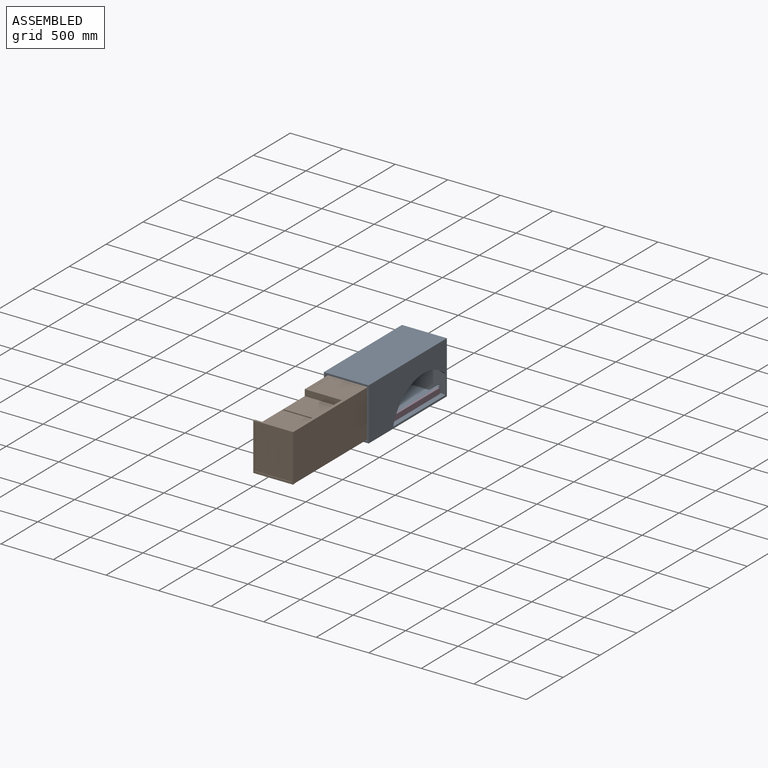
[diagram: assembled view]
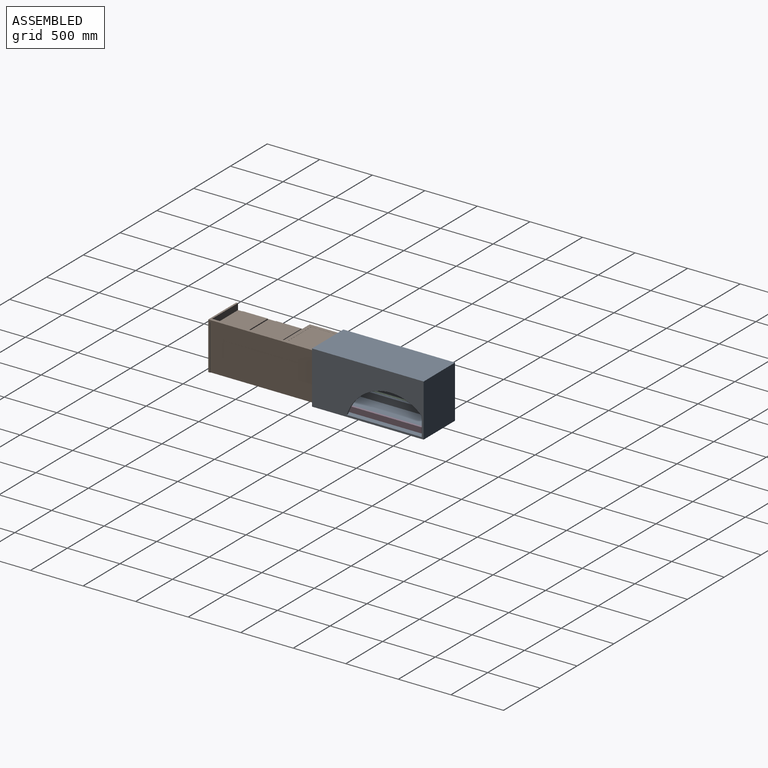
[diagram: assembled view, second angle]
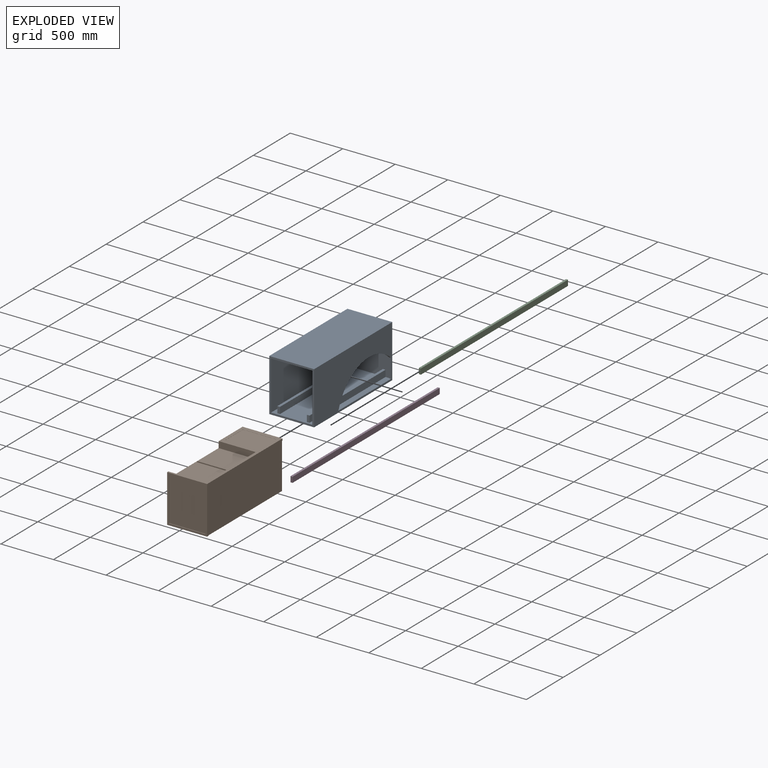
[diagram: exploded view]
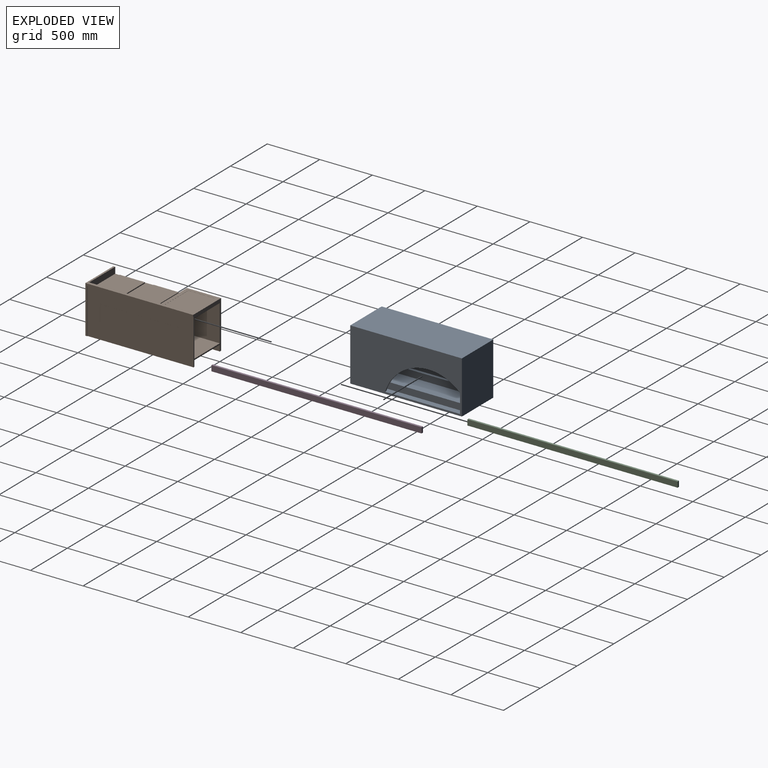
[diagram: exploded view, second angle]
ASSEMBLY  parts=4 mates=3
PART A: 21 faces, bbox 427x1062.5x500 mm
  f0: plane 1050x465mm, normal (-1,0,0), area 317641mm2, adj f2,f3,f8,f9,f19,f20
  f1: plane 1062.5x500mm, normal (1,0,0), area 360641mm2, adj f3,f4,f6,f8,f10,f19,f20
  f2: plane 1050x392mm, normal (0,0,-1), area 411600mm2, adj f0,f7,f8,f9
  f3: plane 1050x409.5mm, normal (0,0,1), area 372465.4mm2, adj f0,f1,f7,f8,f9,f11,f12,f14
  f4: plane 1062.5x427mm, normal (0,0,1), area 453687.5mm2, adj f1,f5,f8,f10
  f5: plane 1062.5x500mm, normal (-1,0,0), area 531250mm2, adj f4,f6,f8,f10
  f6: plane 1062.5x427mm, normal (0,0,-1), area 453687.5mm2, adj f1,f5,f8,f10
  f7: plane 1050x465mm, normal (1,0,0), area 488250mm2, adj f2,f3,f8,f9
  f8: plane 500x427mm, normal (0,-1,0), area 31220mm2, adj f0,f1,f2,f3,f4,f5,f6,f7
  f9: plane 465x392mm, normal (0,-1,0), area 179180mm2, adj f0,f2,f3,f7,f12,f13,f14,f16
  f10: plane 500x427mm, normal (0,1,0), area 213500mm2, adj f1,f4,f5,f6
  f11: plane 62x25mm, normal (0,-1,0), area 1550mm2, adj f3,f12,f13,f14
  f12: plane 1032.5x62mm, normal (-1,0,0), area 64015mm2, adj f3,f9,f11,f13
  f13: plane 1032.5x25mm, normal (0,0,1), area 25812.5mm2, adj f9,f11,f12,f14
  f14: plane 1032.5x62mm, normal (1,0,0), area 64015mm2, adj f3,f9,f11,f13
  f15: plane 62x25mm, normal (0,-1,0), area 1550mm2, adj f3,f16,f17,f18
  f16: plane 1032.5x62mm, normal (-1,0,0), area 64015mm2, adj f3,f9,f15,f17
  f17: plane 1032.5x25mm, normal (0,0,1), area 25812.5mm2, adj f9,f15,f16,f18
  f18: plane 1032.5x62mm, normal (1,0,0), area 64015mm2, adj f3,f9,f15,f17
  f19: plane 181.36x17.5mm, normal (0,-1,0), area 3173.7mm2, adj f0,f1,f3,f20
  f20: cylinder r=434.62mm len=713.74mm, axis (1,0,0), area 15374.1mm2, adj f0,f1,f3,f19
PART B: 69 faces, bbox 380x1025x452.5 mm
  f0: plane 1025x380mm, normal (0,0,1), area 69853.5mm2, adj f1,f7,f10,f19,f22,f50,f57,f64
  f1: plane 452.5x380mm, normal (0,1,0), area 30434.4mm2, adj f0,f2,f6,f9,f14,f15,f16,f17
  f2: plane 1007.5x435mm, normal (1,0,0), area 438262.5mm2, adj f1,f20,f21,f51
  f3: plane 682.5x292.5mm, normal (1,0,0), area 95131.2mm2, adj f4,f18,f43,f44,f45,f46,f47,f59
  f4: plane 682.5x345mm, normal (0,0,-1), area 107590.5mm2, adj f3,f5,f33,f34,f35,f36,f38,f39
  f5: plane 682.5x292.5mm, normal (-1,0,0), area 199631.2mm2, adj f4,f18,f47,f59
  f6: plane 345x312.5mm, normal (0,0,1), area 107812.5mm2, adj f1,f9,f17,f58
  f7: plane 452.5x380mm, normal (0,-1,0), area 27912.5mm2, adj f0,f19,f20,f22,f52,f53,f54,f55
  f8: plane 990x420mm, normal (-1,0,0), area 277350mm2, adj f12,f13,f43,f44,f45,f46,f49,f60
  f9: plane 346.39x312.5mm, normal (1,0,0), area 108245.6mm2, adj f1,f6,f58,f63
  f10: plane 682.5x60mm, normal (-1,0,0), area 40950mm2, adj f0,f11,f50,f57
  f11: plane 682.5x352.5mm, normal (0,0,1), area 86981.3mm2, adj f10,f19,f23,f24,f25,f26,f28,f29
  f12: plane 700x5mm, normal (0,0,-1), area 3500mm2, adj f8,f19,f49,f62
  f13: plane 990x5mm, normal (0,0,1), area 4950mm2, adj f8,f19,f49,f60
  f14: plane 1007.5x57.5mm, normal (1,0,0), area 57931.3mm2, adj f1,f15,f20,f48
  f15: plane 1007.5x345mm, normal (0,0,-1), area 347587.5mm2, adj f1,f14,f16,f48
  f16: plane 1007.5x57.5mm, normal (-1,0,0), area 57931.3mm2, adj f1,f15,f20,f48
  f17: plane 346.39x312.5mm, normal (-1,0,0), area 108245.6mm2, adj f1,f6,f58,f63
  f18: plane 682.5x345mm, normal (0,0,1), area 235462.5mm2, adj f3,f5,f47,f59
  f19: plane 1025x452.5mm, normal (-1,0,0), area 41012.5mm2, adj f0,f1,f7,f11,f12,f13,f20,f49
  f20: plane 1025x380mm, normal (0,0,-1), area 36875mm2, adj f1,f2,f7,f14,f16,f19,f22,f48
  f21: plane 1007.5x5mm, normal (0,0,-1), area 5037.5mm2, adj f1,f2,f22,f51
  f22: plane 1025x452.5mm, normal (1,0,0), area 25550mm2, adj f0,f1,f7,f20,f21,f51
  f23: plane 240x10mm, normal (1,0,0), area 2400mm2, adj f11,f24,f26,f27
  f24: plane 320x10mm, normal (0,1,0), area 3200mm2, adj f11,f23,f25,f27
  f25: plane 240x10mm, normal (-1,0,0), area 2400mm2, adj f11,f24,f26,f27
  f26: plane 320x10mm, normal (0,-1,0), area 3200mm2, adj f11,f23,f25,f27
  f27: plane 320x240mm, normal (0,0,1), area 76800mm2, adj f23,f24,f25,f26
  f28: plane 240x10mm, normal (1,0,0), area 2400mm2, adj f11,f29,f31,f32
  f29: plane 320x10mm, normal (0,1,0), area 3200mm2, adj f11,f28,f30,f32
  f30: plane 240x10mm, normal (-1,0,0), area 2400mm2, adj f11,f29,f31,f32
  f31: plane 320x10mm, normal (0,-1,0), area 3200mm2, adj f11,f28,f30,f32
  f32: plane 320x240mm, normal (0,0,1), area 76800mm2, adj f28,f29,f30,f31
  f33: plane 216x30mm, normal (-1,0,0), area 6480mm2, adj f4,f34,f36,f37
  f34: plane 296x30mm, normal (0,-1,0), area 8880mm2, adj f4,f33,f35,f37
  f35: plane 216x30mm, normal (1,0,0), area 6480mm2, adj f4,f34,f36,f37
  f36: plane 296x30mm, normal (0,1,0), area 8880mm2, adj f4,f33,f35,f37
  f37: plane 296x216mm, normal (0,0,-1), area 63936mm2, adj f33,f34,f35,f36
  f38: plane 216x30mm, normal (-1,0,0), area 6480mm2, adj f4,f39,f41,f42
  f39: plane 296x30mm, normal (0,-1,0), area 8880mm2, adj f4,f38,f40,f42
  f40: plane 216x30mm, normal (1,0,0), area 6480mm2, adj f4,f39,f41,f42
  f41: plane 296x30mm, normal (0,1,0), area 8880mm2, adj f4,f38,f40,f42
  f42: plane 296x216mm, normal (0,0,-1), area 63936mm2, adj f38,f39,f40,f41
  f43: plane 190x12.5mm, normal (0,1,0), area 2375mm2, adj f3,f8,f44,f46
  f44: plane 550x12.5mm, normal (0,0,-1), area 6875mm2, adj f3,f8,f43,f45
  f45: plane 190x12.5mm, normal (0,-1,0), area 2375mm2, adj f3,f8,f44,f46
  f46: plane 550x12.5mm, normal (0,0,1), area 6875mm2, adj f3,f8,f43,f45
  f47: plane 345x292.5mm, normal (0,1,0), area 100912.5mm2, adj f3,f4,f5,f18
  f48: plane 345x57.5mm, normal (0,1,0), area 19837.5mm2, adj f14,f15,f16,f20
  f49: plane 371.5x5mm, normal (0,1,0), area 1857.5mm2, adj f8,f12,f13,f19
  f50: plane 352.5x60mm, normal (0,1,0), area 21150mm2, adj f0,f10,f11,f19
  f51: plane 435x5mm, normal (0,1,0), area 2175mm2, adj f2,f20,f21,f22
  f52: plane 345x5mm, normal (0,0,-1), area 1725mm2, adj f7,f53,f55,f56
  f53: plane 417.5x5mm, normal (1,0,0), area 2087.5mm2, adj f7,f52,f54,f56
  f54: plane 345x5mm, normal (0,0,1), area 1725mm2, adj f7,f53,f55,f56
  f55: plane 417.5x5mm, normal (-1,0,0), area 2087.5mm2, adj f7,f52,f54,f56
  f56: plane 417.5x345mm, normal (0,-1,0), area 144037.5mm2, adj f52,f53,f54,f55
  f57: plane 352.5x60mm, normal (0,-1,0), area 21150mm2, adj f0,f10,f11,f19
  f58: plane 346.39x345mm, normal (0,1,0), area 119503.1mm2, adj f6,f9,f17,f63
  f59: plane 345x292.5mm, normal (0,-1,0), area 100912.5mm2, adj f3,f4,f5,f18
  f60: plane 420x5mm, normal (0,-1,0), area 2100mm2, adj f8,f13,f19,f61
  f61: plane 290x5mm, normal (0,0,-1), area 1450mm2, adj f8,f19,f60,f62
  f62: plane 48.5x5mm, normal (0,1,0), area 242.5mm2, adj f8,f12,f19,f61
  f63: plane 345x312.5mm, normal (0,0,-1), area 107812.5mm2, adj f1,f9,f17,f58
  f64: plane 250x1mm, normal (1,0,0), area 250mm2, adj f0,f65,f67,f68
  f65: plane 316.26x1mm, normal (0,1,0), area 316.3mm2, adj f0,f64,f66,f68
  f66: plane 250x1mm, normal (-1,0,0), area 250mm2, adj f0,f65,f67,f68
  f67: plane 316.26x1mm, normal (0,-1,0), area 316.3mm2, adj f0,f64,f66,f68
  f68: plane 316.26x250mm, normal (0,0,1), area 79065.2mm2, adj f64,f65,f66,f67
PART C: 6 faces, bbox 19.5x2000x53 mm
  f0: plane 2000x19.5mm, normal (0,0,1), area 39000mm2, adj f1,f3,f4,f5
  f1: plane 2000x53mm, normal (-1,0,0), area 106000mm2, adj f0,f2,f4,f5
  f2: plane 2000x19.5mm, normal (0,0,-1), area 39000mm2, adj f1,f3,f4,f5
  f3: plane 2000x53mm, normal (1,0,0), area 106000mm2, adj f0,f2,f4,f5
  f4: plane 53x19.5mm, normal (0,-1,0), area 1033.5mm2, adj f0,f1,f2,f3
  f5: plane 53x19.5mm, normal (0,1,0), area 1033.5mm2, adj f0,f1,f2,f3
PART D: 6 faces, bbox 19.5x2000x53 mm
  f0: plane 2000x19.5mm, normal (0,0,1), area 39000mm2, adj f1,f3,f4,f5
  f1: plane 2000x53mm, normal (-1,0,0), area 106000mm2, adj f0,f2,f4,f5
  f2: plane 2000x19.5mm, normal (0,0,-1), area 39000mm2, adj f1,f3,f4,f5
  f3: plane 2000x53mm, normal (1,0,0), area 106000mm2, adj f0,f2,f4,f5
  f4: plane 53x19.5mm, normal (0,-1,0), area 1033.5mm2, adj f0,f1,f2,f3
  f5: plane 53x19.5mm, normal (0,1,0), area 1033.5mm2, adj f0,f1,f2,f3
PLACE A t=(-84.35,1104.92,-5.56)mm
PLACE B t=(105.7,104.92,231.19)mm
PLACE C t=(269.35,2122.42,110.25)mm
PLACE D t=(269.35,2122.42,110.25)mm
MATE fastened C.f3 <-> A.f12  axis (1,0,0) through (-36.65,1122.42,30.44)mm
MATE fastened B.f48 <-> D.f4  axis (0,-1,0) through (288.85,122.42,56.94)mm
MATE fastened C.f4 <-> B.f48  axis (0,1,0) through (-56.15,122.42,56.94)mm
